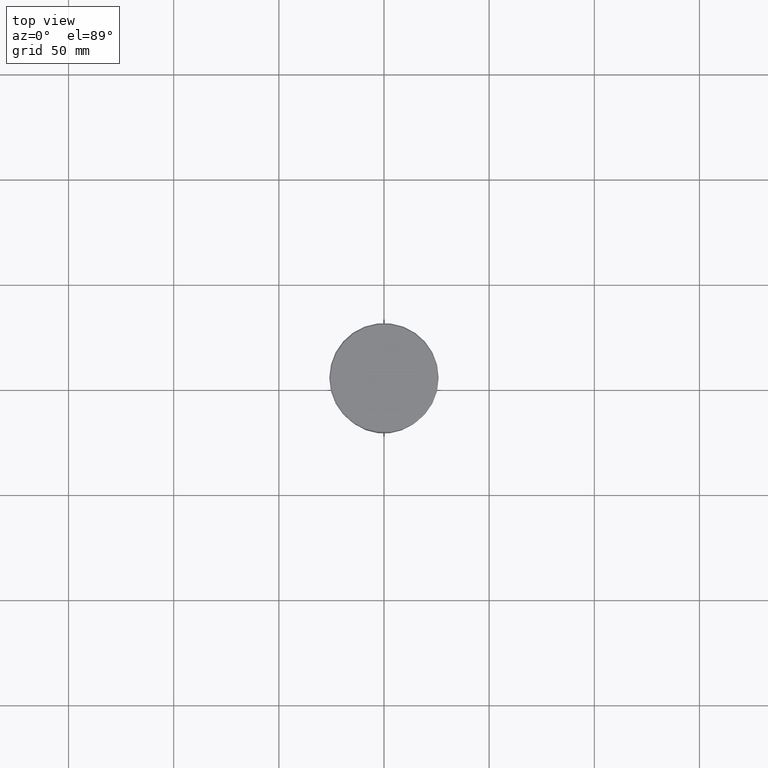
[diagram: clean part render]
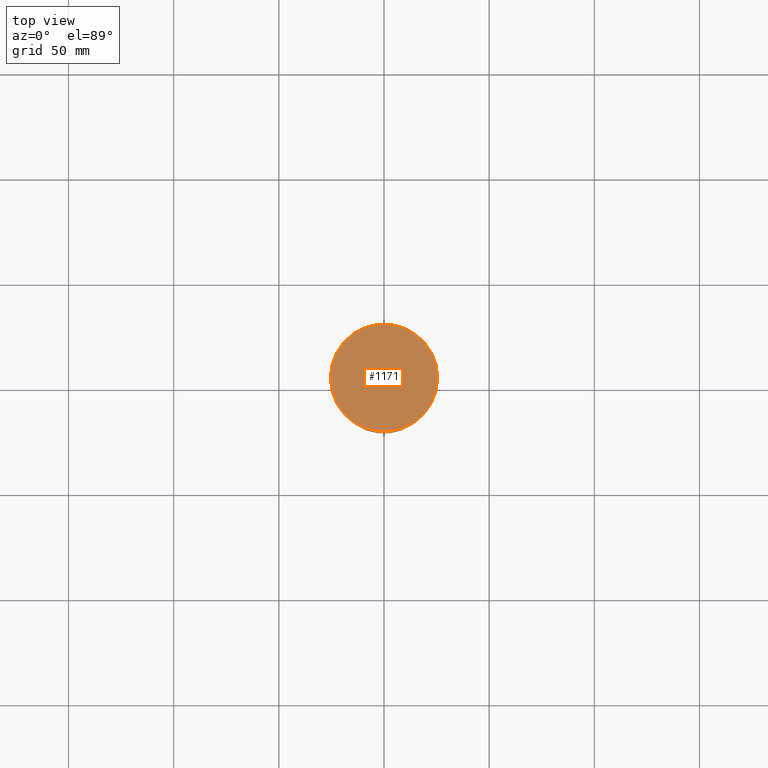
[diagram: same view with one face highlighted and labeled with its STEP entity id]
A machine part, top view. The second image highlights one B-rep face of the part: STEP entity #1171.
In plain terms, the highlighted planar face has unit normal (0, -0, 1).
Its self-contained STEP definition (entity closure, byte-faithful):
#33 = CARTESIAN_POINT ( 'NONE',  ( 25.50000000000005329, 3.153465507804437559E-15, 0.000000000000000000 ) ) ;
#50 = AXIS2_PLACEMENT_3D ( 'NONE', #809, #726, #253 ) ;
#193 = DIRECTION ( 'NONE',  ( 1.000000000000000000, 0.000000000000000000, 0.000000000000000000 ) ) ;
#207 = EDGE_CURVE ( 'NONE', #740, #617, #920, .T. ) ;
#246 = ORIENTED_EDGE ( 'NONE', *, *, #207, .T. ) ;
#253 = DIRECTION ( 'NONE',  ( 1.000000000000000000, 0.000000000000000000, 0.000000000000000000 ) ) ;
#261 = CARTESIAN_POINT ( 'NONE',  ( -25.50000000000005329, 0.000000000000000000, 0.000000000000000000 ) ) ;
#281 = FACE_OUTER_BOUND ( 'NONE', #734, .T. ) ;
#379 = ORIENTED_EDGE ( 'NONE', *, *, #631, .T. ) ;
#617 = VERTEX_POINT ( 'NONE', #261 ) ;
#631 = EDGE_CURVE ( 'NONE', #617, #740, #852, .T. ) ;
#634 = CARTESIAN_POINT ( 'NONE',  ( 0.000000000000000000, 0.000000000000000000, 0.000000000000000000 ) ) ;
#657 = DIRECTION ( 'NONE',  ( -0.000000000000000000, -0.000000000000000000, 1.000000000000000000 ) ) ;
#726 = DIRECTION ( 'NONE',  ( 0.000000000000000000, -0.000000000000000000, 1.000000000000000000 ) ) ;
#734 = EDGE_LOOP ( 'NONE', ( #379, #246 ) ) ;
#740 = VERTEX_POINT ( 'NONE', #33 ) ;
#760 = AXIS2_PLACEMENT_3D ( 'NONE', #634, #657, #193 ) ;
#783 = DIRECTION ( 'NONE',  ( 1.000000000000000000, 0.000000000000000000, 0.000000000000000000 ) ) ;
#800 = CARTESIAN_POINT ( 'NONE',  ( 0.000000000000000000, 0.000000000000000000, 0.000000000000000000 ) ) ;
#809 = CARTESIAN_POINT ( 'NONE',  ( 0.000000000000000000, 0.000000000000000000, 0.000000000000000000 ) ) ;
#852 = CIRCLE ( 'NONE', #760, 25.50000000000005329 ) ;
#911 = PLANE ( 'NONE',  #50 ) ;
#920 = CIRCLE ( 'NONE', #1065, 25.50000000000005329 ) ;
#984 = DIRECTION ( 'NONE',  ( -0.000000000000000000, -0.000000000000000000, 1.000000000000000000 ) ) ;
#1065 = AXIS2_PLACEMENT_3D ( 'NONE', #800, #984, #783 ) ;
#1171 = ADVANCED_FACE ( 'NONE', ( #281 ), #911, .T. ) ;